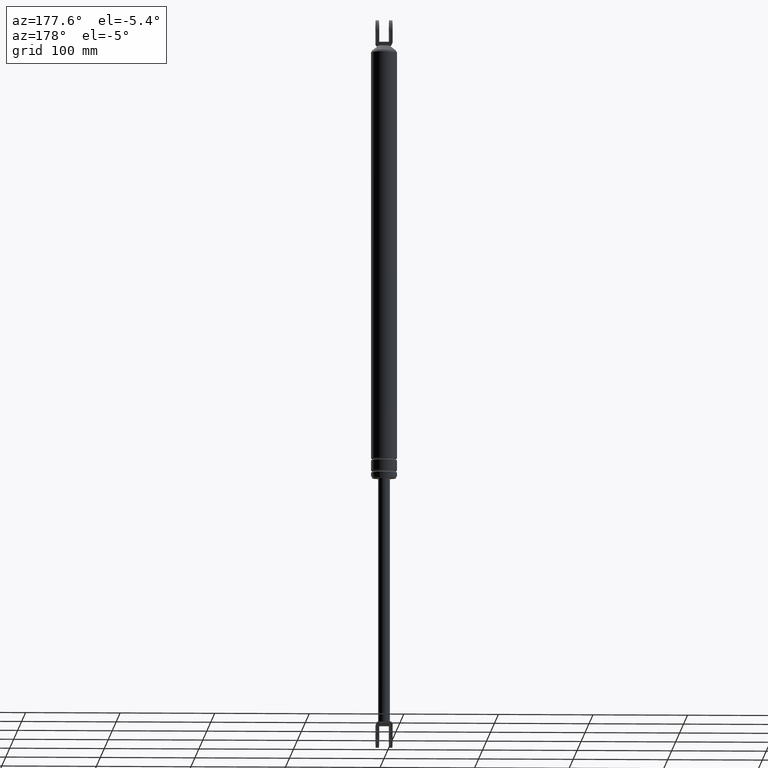
[diagram: clean part render]
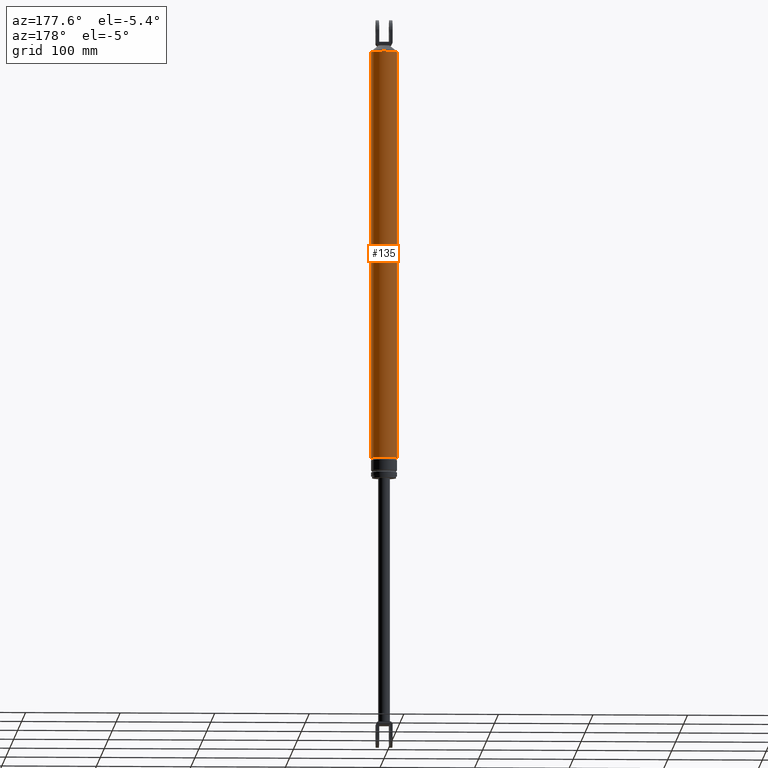
[diagram: same view with one face highlighted and labeled with its STEP entity id]
A machine part, auxiliary view. The second image highlights one B-rep face of the part: STEP entity #135.
In plain terms, the highlighted cylindrical surface (edge-blend (fillet) strip) has radius 13.7 mm, axis along (0, 0, 1).
Its self-contained STEP definition (entity closure, byte-faithful):
#135=ADVANCED_FACE('',(#411),#410,.T.);
#410=CYLINDRICAL_SURFACE('',#1013,1.37000000000E+001);
#411=FACE_OUTER_BOUND('',#1014,.T.);
#1010=CARTESIAN_POINT('',(0.00000000000E+000,0.00000000000E+000,1.07100000000E+003));
#1011=DIRECTION('',(-0.00000000000E+000,-0.00000000000E+000,1.00000000000E+000));
#1012=DIRECTION('',(1.00000000000E+000,0.00000000000E+000,0.00000000000E+000));
#1013=AXIS2_PLACEMENT_3D('',#1010,#1011,#1012);
#1014=EDGE_LOOP('',(#1510,#1511,#1512,#1513));
#1510=ORIENTED_EDGE('',*,*,#1765,.T.);
#1511=ORIENTED_EDGE('',*,*,#1766,.F.);
#1512=ORIENTED_EDGE('',*,*,#1767,.F.);
#1513=ORIENTED_EDGE('',*,*,#1768,.T.);
#1765=EDGE_CURVE('',#2283,#2282,#2302,.T.);
#1766=EDGE_CURVE('',#2308,#2282,#2309,.T.);
#1767=EDGE_CURVE('',#2315,#2308,#2316,.T.);
#1768=EDGE_CURVE('',#2315,#2283,#2322,.T.);
#2282=VERTEX_POINT('',#3148);
#2283=VERTEX_POINT('',#3149);
#2302=CIRCLE('',#3161,1.37000000000E+001);
#2308=VERTEX_POINT('',#3162);
#2309=(BOUNDED_CURVE() B_SPLINE_CURVE(1,(#3163,#3164),.UNSPECIFIED.,.F.,.F.) B_SPLINE_CURVE_WITH_KNOTS((2,2),(2.21729504881E-002,9.77827049451E-001),.UNSPECIFIED.) CURVE() GEOMETRIC_REPRESENTATION_ITEM() RATIONAL_B_SPLINE_CURVE((1.00000000000E+000,1.00000000000E+000)) REPRESENTATION_ITEM('') );
#2315=VERTEX_POINT('',#3165);
#2316=CIRCLE('',#3169,1.37000000000E+001);
#2322=(BOUNDED_CURVE() B_SPLINE_CURVE(1,(#3170,#3171),.UNSPECIFIED.,.F.,.F.) B_SPLINE_CURVE_WITH_KNOTS((2,2),(2.21729505263E-002,9.77827049474E-001),.UNSPECIFIED.) CURVE() GEOMETRIC_REPRESENTATION_ITEM() RATIONAL_B_SPLINE_CURVE((7.50000000000E-001,7.50000000000E-001)) REPRESENTATION_ITEM('') );
#3148=CARTESIAN_POINT('',(1.37000000000E+001,0.00000000000E+000,5.01999969000E+002));
#3149=CARTESIAN_POINT('',(-1.37000000000E+001,0.00000000000E+000,5.01999969000E+002));
#3158=CARTESIAN_POINT('',(-5.68434188608E-014,0.00000000000E+000,5.01999969000E+002));
#3159=DIRECTION('',(-0.00000000000E+000,0.00000000000E+000,-1.00000000000E+000));
#3160=DIRECTION('',(-1.00000000000E+000,-1.22460635382E-016,0.00000000000E+000));
#3161=AXIS2_PLACEMENT_3D('',#3158,#3159,#3160);
#3162=CARTESIAN_POINT('',(1.37000000000E+001,0.00000000000E+000,7.10000000000E+001));
#3163=CARTESIAN_POINT('',(1.37000000000E+001,0.00000000000E+000,7.09999999828E+001));
#3164=CARTESIAN_POINT('',(1.37000000000E+001,0.00000000000E+000,5.01999968990E+002));
#3165=CARTESIAN_POINT('',(-1.37000000000E+001,0.00000000000E+000,7.10000000000E+001));
#3166=CARTESIAN_POINT('',(0.00000000000E+000,0.00000000000E+000,7.10000000000E+001));
#3167=DIRECTION('',(-0.00000000000E+000,0.00000000000E+000,-1.00000000000E+000));
#3168=DIRECTION('',(-1.00000000000E+000,-1.22460635382E-016,0.00000000000E+000));
#3169=AXIS2_PLACEMENT_3D('',#3166,#3167,#3168);
#3170=CARTESIAN_POINT('',(-1.37000000000E+001,-5.92118946467E-016,7.10000000000E+001));
#3171=CARTESIAN_POINT('',(-1.37000000000E+001,-5.92118946467E-016,5.01999969000E+002));